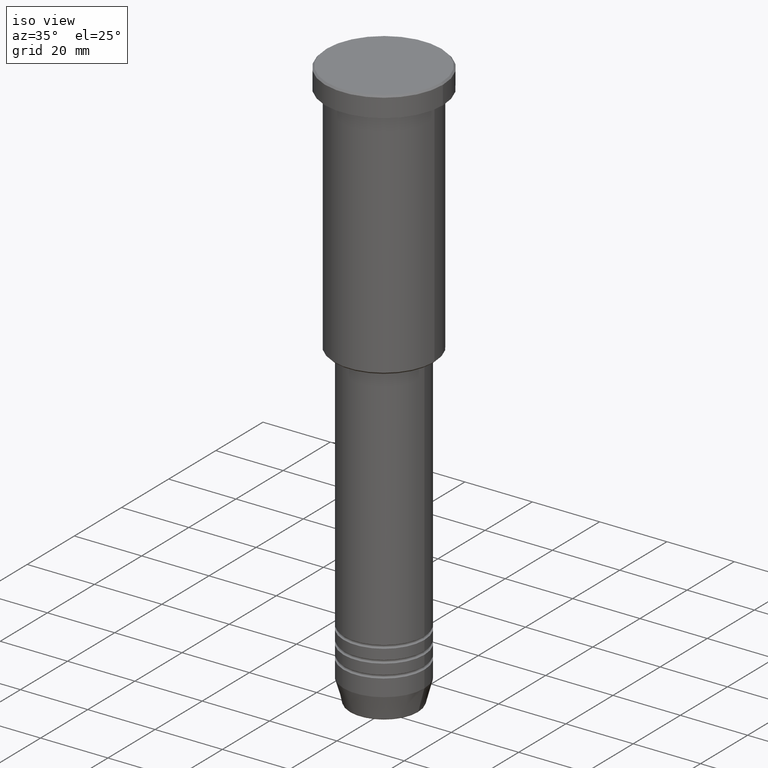
[diagram: clean part render]
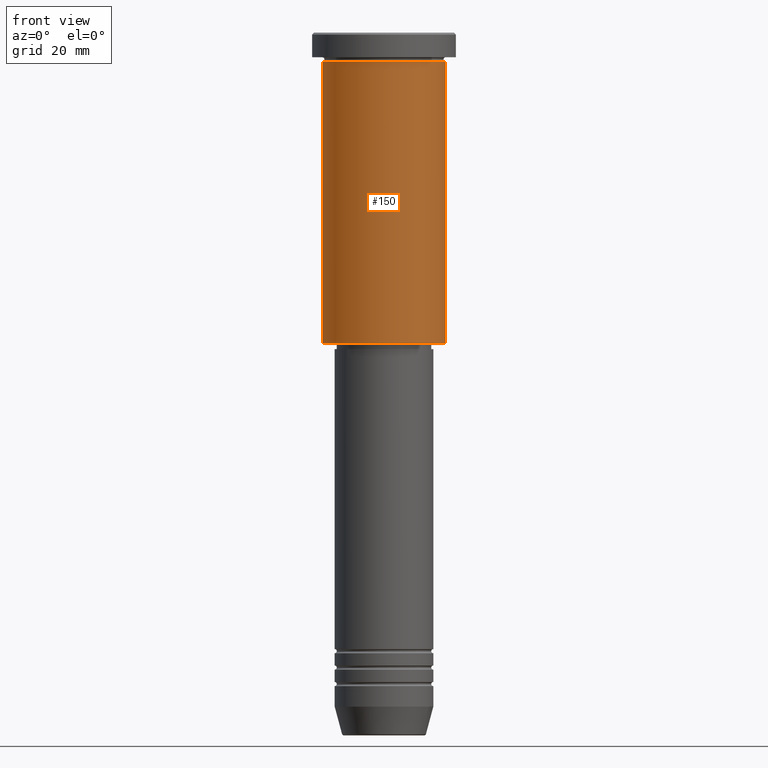
[diagram: tour spotlight — one face highlighted and labeled with its STEP entity id]
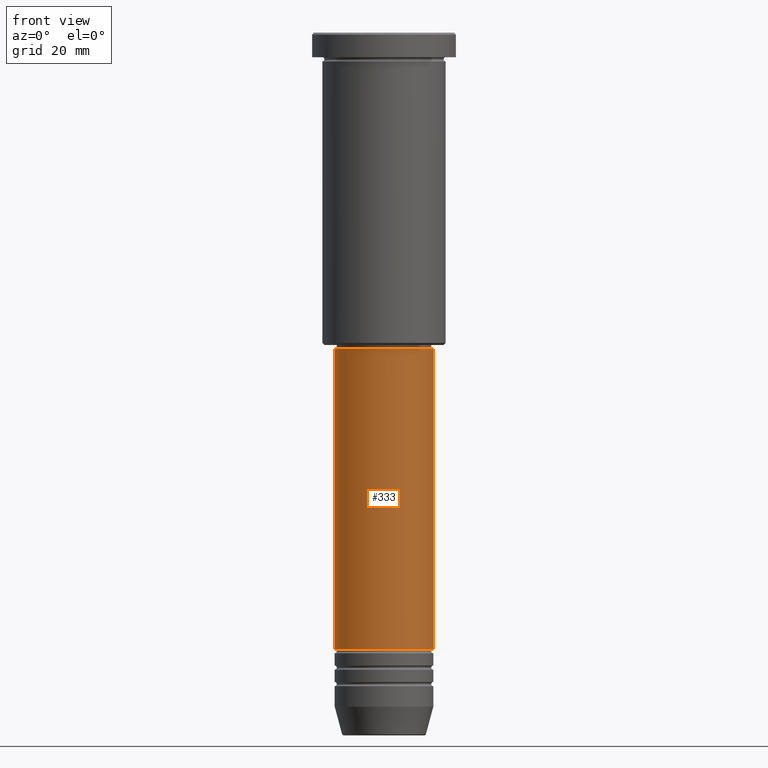
[diagram: tour spotlight — one face highlighted and labeled with its STEP entity id]
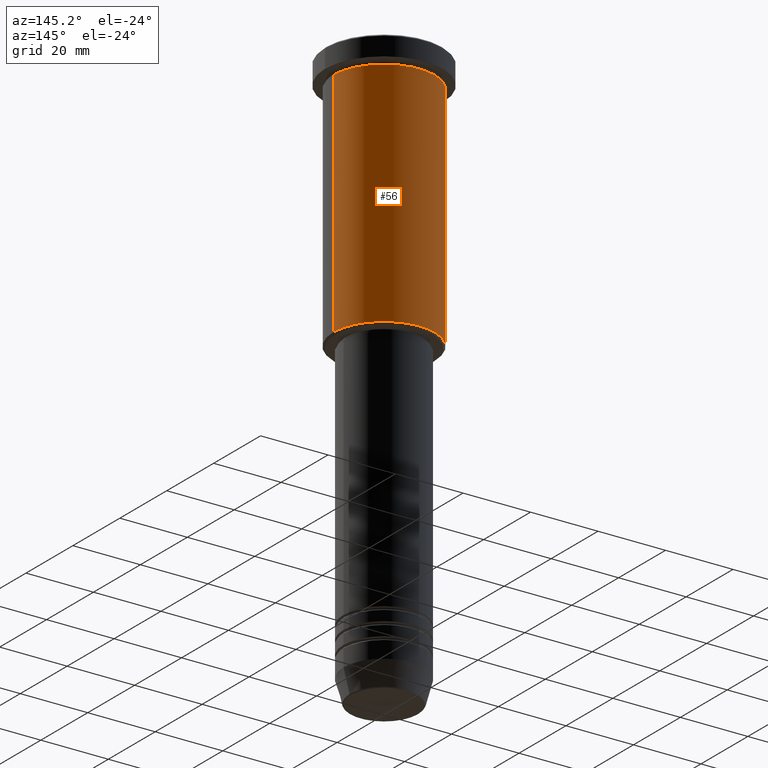
[diagram: tour spotlight — one face highlighted and labeled with its STEP entity id]
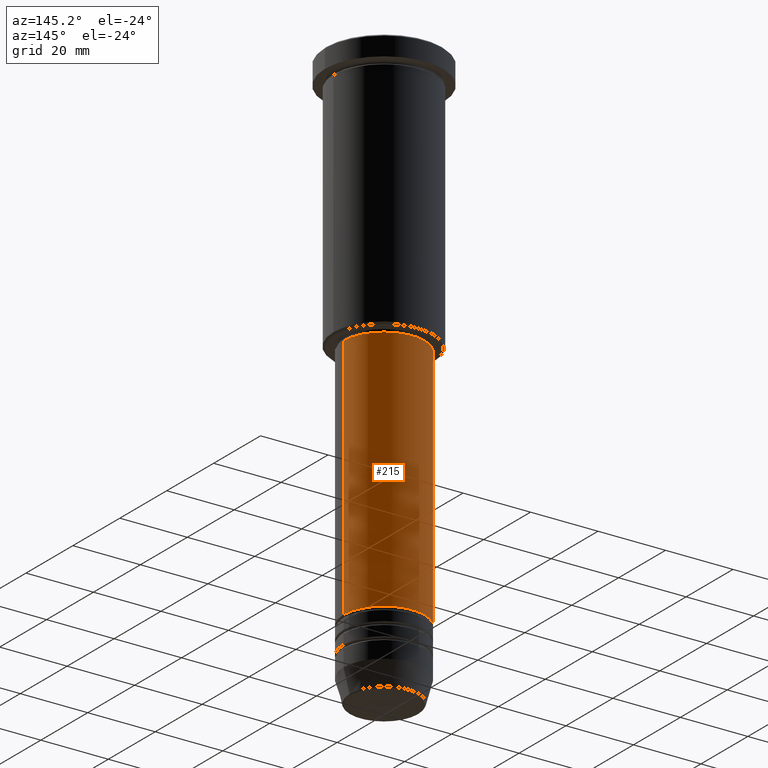
[diagram: tour spotlight — one face highlighted and labeled with its STEP entity id]
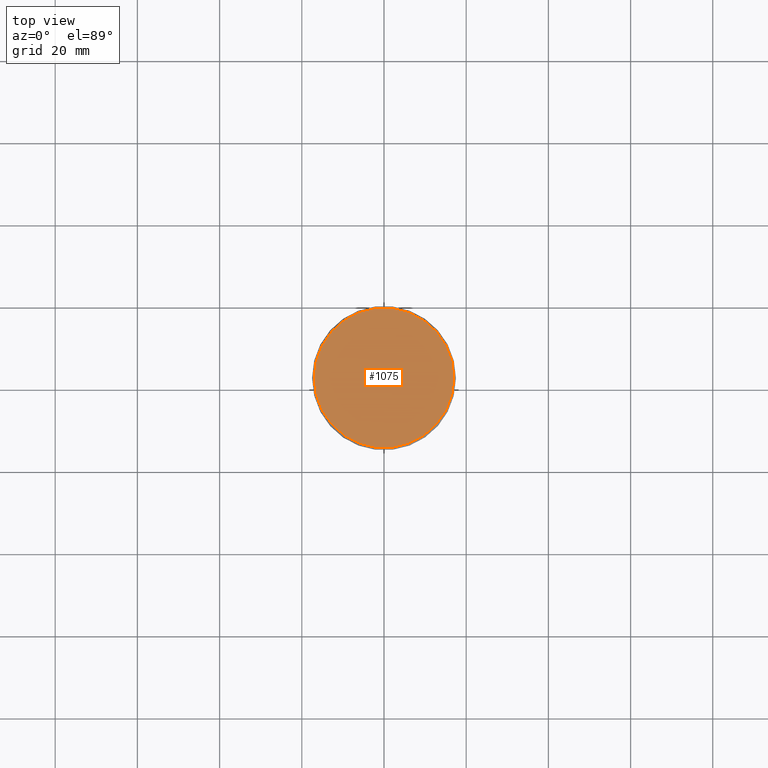
[diagram: tour spotlight — one face highlighted and labeled with its STEP entity id]
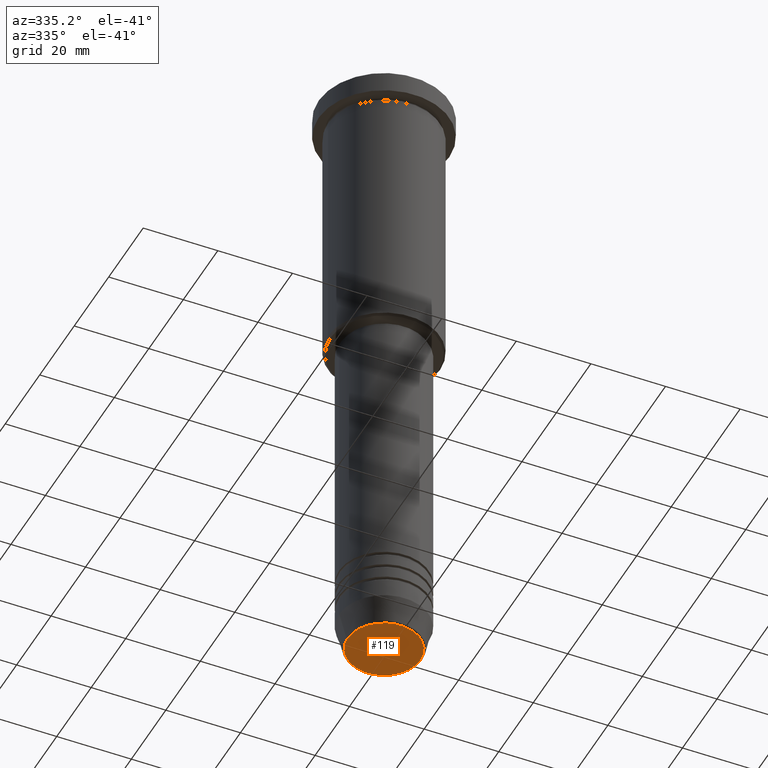
[diagram: tour spotlight — one face highlighted and labeled with its STEP entity id]
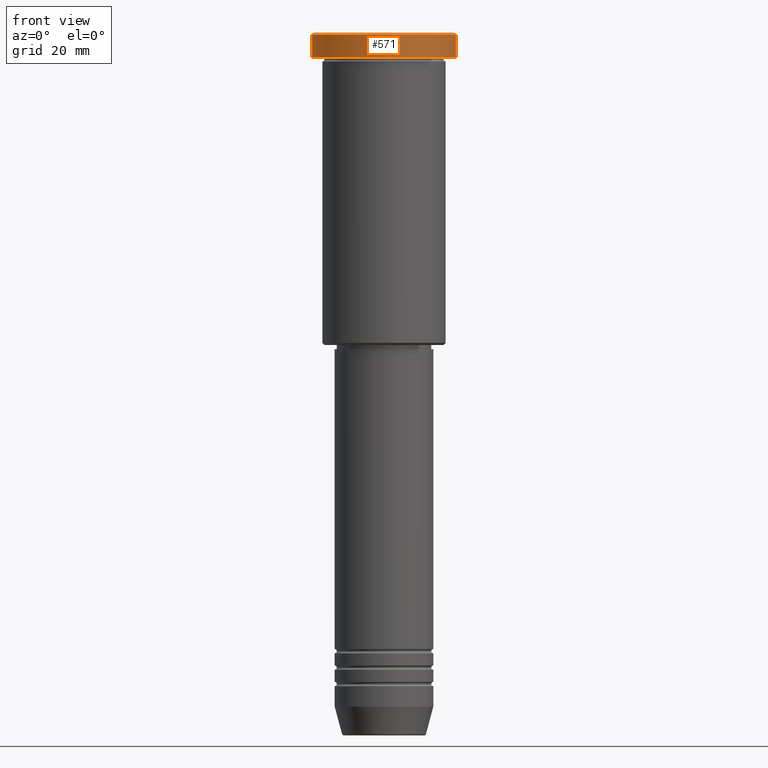
[diagram: tour spotlight — one face highlighted and labeled with its STEP entity id]
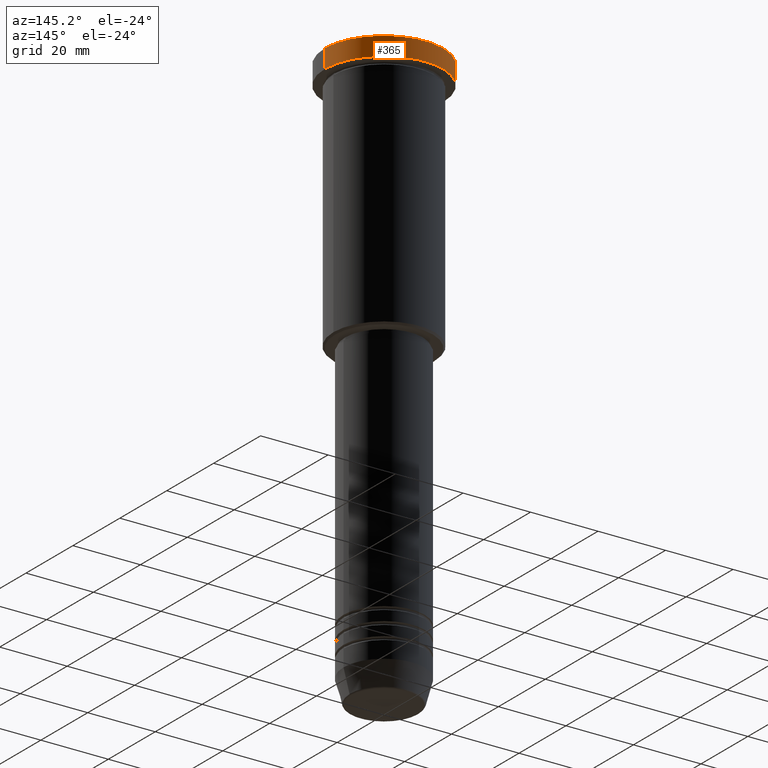
[diagram: tour spotlight — one face highlighted and labeled with its STEP entity id]
A machine part: a face-by-face anatomy tour. The part has 43 B-rep faces; the first image is the clean iso view, then the 8 largest visible faces are spotlighted one at a time (largest first), each with its STEP entity span.

Face 1 — front view, entity #150. In plain terms, the highlighted cylindrical surface (partial cylindrical patch) has radius 15 mm, axis along (-0, -0, 1).
Definition (entity closure, byte-faithful):
#21 = DIRECTION ( 'NONE',  ( -0.000000000000000000, -0.000000000000000000, 1.000000000000000000 ) ) ;
#73 = EDGE_CURVE ( 'NONE', #80, #827, #275, .T. ) ;
#80 = VERTEX_POINT ( 'NONE', #764 ) ;
#81 = DIRECTION ( 'NONE',  ( -0.000000000000000000, -0.000000000000000000, 1.000000000000000000 ) ) ;
#149 = CARTESIAN_POINT ( 'NONE',  ( 0.000000000000000000, 0.000000000000000000, 0.000000000000000000 ) ) ;
#150 = ADVANCED_FACE ( 'NONE', ( #254 ), #1160, .T. ) ;
#254 = FACE_OUTER_BOUND ( 'NONE', #872, .T. ) ;
#275 = CIRCLE ( 'NONE', #605, 15.00000000000000000 ) ;
#312 = DIRECTION ( 'NONE',  ( 1.000000000000000000, 0.000000000000000000, 0.000000000000000000 ) ) ;
#344 = LINE ( 'NONE', #540, #740 ) ;
#364 = ORIENTED_EDGE ( 'NONE', *, *, #463, .T. ) ;
#382 = AXIS2_PLACEMENT_3D ( 'NONE', #831, #21, #312 ) ;
#395 = ORIENTED_EDGE ( 'NONE', *, *, #986, .F. ) ;
#398 = CIRCLE ( 'NONE', #382, 15.00000000000000000 ) ;
#463 = EDGE_CURVE ( 'NONE', #827, #749, #344, .T. ) ;
#482 = CARTESIAN_POINT ( 'NONE',  ( 15.00000000000000000, 0.000000000000000000, -75.49999999999995737 ) ) ;
#484 = CARTESIAN_POINT ( 'NONE',  ( -15.00000000000000000, 1.836970198721029589E-15, -6.999999999999995559 ) ) ;
#502 = DIRECTION ( 'NONE',  ( -0.000000000000000000, -0.000000000000000000, 1.000000000000000000 ) ) ;
#540 = CARTESIAN_POINT ( 'NONE',  ( 15.00000000000000000, 0.000000000000000000, 0.000000000000000000 ) ) ;
#565 = VECTOR ( 'NONE', #1153, 1000.000000000000000 ) ;
#570 = AXIS2_PLACEMENT_3D ( 'NONE', #149, #893, #1167 ) ;
#593 = CARTESIAN_POINT ( 'NONE',  ( 15.00000000000000000, 0.000000000000000000, -6.999999999999995559 ) ) ;
#605 = AXIS2_PLACEMENT_3D ( 'NONE', #853, #502, #857 ) ;
#611 = VERTEX_POINT ( 'NONE', #484 ) ;
#740 = VECTOR ( 'NONE', #81, 1000.000000000000000 ) ;
#749 = VERTEX_POINT ( 'NONE', #593 ) ;
#764 = CARTESIAN_POINT ( 'NONE',  ( -15.00000000000000000, 1.836970198721029589E-15, -75.49999999999995737 ) ) ;
#773 = LINE ( 'NONE', #783, #565 ) ;
#783 = CARTESIAN_POINT ( 'NONE',  ( -15.00000000000000000, 1.836970198721029589E-15, 0.000000000000000000 ) ) ;
#827 = VERTEX_POINT ( 'NONE', #482 ) ;
#831 = CARTESIAN_POINT ( 'NONE',  ( 0.000000000000000000, 0.000000000000000000, -6.999999999999995559 ) ) ;
#837 = EDGE_CURVE ( 'NONE', #611, #749, #398, .T. ) ;
#840 = ORIENTED_EDGE ( 'NONE', *, *, #837, .F. ) ;
#853 = CARTESIAN_POINT ( 'NONE',  ( 0.000000000000000000, 0.000000000000000000, -75.49999999999995737 ) ) ;
#857 = DIRECTION ( 'NONE',  ( -1.000000000000000000, 0.000000000000000000, 0.000000000000000000 ) ) ;
#863 = ORIENTED_EDGE ( 'NONE', *, *, #73, .T. ) ;
#872 = EDGE_LOOP ( 'NONE', ( #395, #863, #364, #840 ) ) ;
#893 = DIRECTION ( 'NONE',  ( -0.000000000000000000, -0.000000000000000000, 1.000000000000000000 ) ) ;
#986 = EDGE_CURVE ( 'NONE', #80, #611, #773, .T. ) ;
#1153 = DIRECTION ( 'NONE',  ( -0.000000000000000000, -0.000000000000000000, 1.000000000000000000 ) ) ;
#1160 = CYLINDRICAL_SURFACE ( 'NONE', #570, 15.00000000000000000 ) ;
#1167 = DIRECTION ( 'NONE',  ( 1.000000000000000000, 0.000000000000000000, 0.000000000000000000 ) ) ;

Face 2 — front view, entity #333. In plain terms, the highlighted cylindrical surface (partial cylindrical patch) has radius 12 mm, axis along (-0, -0, 1).
Definition (entity closure, byte-faithful):
#4 = LINE ( 'NONE', #362, #900 ) ;
#23 = ORIENTED_EDGE ( 'NONE', *, *, #753, .F. ) ;
#82 = DIRECTION ( 'NONE',  ( -0.000000000000000000, -0.000000000000000000, 1.000000000000000000 ) ) ;
#108 = CYLINDRICAL_SURFACE ( 'NONE', #970, 12.00000000000000000 ) ;
#133 = DIRECTION ( 'NONE',  ( -0.000000000000000000, -0.000000000000000000, 1.000000000000000000 ) ) ;
#182 = CARTESIAN_POINT ( 'NONE',  ( 0.000000000000000000, 0.000000000000000000, 0.000000000000000000 ) ) ;
#218 = VERTEX_POINT ( 'NONE', #796 ) ;
#251 = ORIENTED_EDGE ( 'NONE', *, *, #1107, .T. ) ;
#299 = ORIENTED_EDGE ( 'NONE', *, *, #1119, .T. ) ;
#333 = ADVANCED_FACE ( 'NONE', ( #1183 ), #108, .T. ) ;
#345 = DIRECTION ( 'NONE',  ( -0.000000000000000000, -0.000000000000000000, 1.000000000000000000 ) ) ;
#362 = CARTESIAN_POINT ( 'NONE',  ( 12.00000000000000000, 0.000000000000000000, 0.000000000000000000 ) ) ;
#392 = CARTESIAN_POINT ( 'NONE',  ( 12.00000000000000000, 0.000000000000000000, -76.99999999999998579 ) ) ;
#400 = CIRCLE ( 'NONE', #673, 12.00000000000000000 ) ;
#441 = ORIENTED_EDGE ( 'NONE', *, *, #955, .F. ) ;
#442 = CARTESIAN_POINT ( 'NONE',  ( -12.00000000000000000, 1.469576158976823947E-15, -76.99999999999998579 ) ) ;
#509 = CARTESIAN_POINT ( 'NONE',  ( 0.000000000000000000, 0.000000000000000000, -76.99999999999998579 ) ) ;
#557 = EDGE_LOOP ( 'NONE', ( #441, #299, #251, #23 ) ) ;
#559 = DIRECTION ( 'NONE',  ( 1.000000000000000000, 0.000000000000000000, 0.000000000000000000 ) ) ;
#637 = VECTOR ( 'NONE', #133, 1000.000000000000000 ) ;
#673 = AXIS2_PLACEMENT_3D ( 'NONE', #892, #82, #1088 ) ;
#753 = EDGE_CURVE ( 'NONE', #768, #851, #859, .T. ) ;
#768 = VERTEX_POINT ( 'NONE', #442 ) ;
#796 = CARTESIAN_POINT ( 'NONE',  ( 12.00000000000000000, 0.000000000000000000, -149.9999999999998579 ) ) ;
#809 = CARTESIAN_POINT ( 'NONE',  ( -12.00000000000000000, 1.469576158976823947E-15, -149.9999999999998579 ) ) ;
#851 = VERTEX_POINT ( 'NONE', #392 ) ;
#855 = DIRECTION ( 'NONE',  ( 1.000000000000000000, 0.000000000000000000, 0.000000000000000000 ) ) ;
#859 = CIRCLE ( 'NONE', #1149, 12.00000000000000000 ) ;
#888 = VERTEX_POINT ( 'NONE', #809 ) ;
#892 = CARTESIAN_POINT ( 'NONE',  ( 0.000000000000000000, 0.000000000000000000, -149.9999999999998579 ) ) ;
#900 = VECTOR ( 'NONE', #345, 1000.000000000000000 ) ;
#955 = EDGE_CURVE ( 'NONE', #888, #768, #958, .T. ) ;
#958 = LINE ( 'NONE', #1146, #637 ) ;
#970 = AXIS2_PLACEMENT_3D ( 'NONE', #182, #1106, #559 ) ;
#1088 = DIRECTION ( 'NONE',  ( 1.000000000000000000, 0.000000000000000000, 0.000000000000000000 ) ) ;
#1106 = DIRECTION ( 'NONE',  ( -0.000000000000000000, -0.000000000000000000, 1.000000000000000000 ) ) ;
#1107 = EDGE_CURVE ( 'NONE', #218, #851, #4, .T. ) ;
#1119 = EDGE_CURVE ( 'NONE', #888, #218, #400, .T. ) ;
#1129 = DIRECTION ( 'NONE',  ( -0.000000000000000000, -0.000000000000000000, 1.000000000000000000 ) ) ;
#1146 = CARTESIAN_POINT ( 'NONE',  ( -12.00000000000000000, 1.469576158976823947E-15, 0.000000000000000000 ) ) ;
#1149 = AXIS2_PLACEMENT_3D ( 'NONE', #509, #1129, #855 ) ;
#1183 = FACE_OUTER_BOUND ( 'NONE', #557, .T. ) ;

Face 3 — auxiliary view, entity #56. In plain terms, the highlighted cylindrical surface (partial cylindrical patch) has radius 15 mm, axis along (-0, -0, 1).
Definition (entity closure, byte-faithful):
#50 = EDGE_CURVE ( 'NONE', #749, #611, #174, .T. ) ;
#56 = ADVANCED_FACE ( 'NONE', ( #493 ), #943, .T. ) ;
#80 = VERTEX_POINT ( 'NONE', #764 ) ;
#81 = DIRECTION ( 'NONE',  ( -0.000000000000000000, -0.000000000000000000, 1.000000000000000000 ) ) ;
#97 = ORIENTED_EDGE ( 'NONE', *, *, #986, .T. ) ;
#106 = AXIS2_PLACEMENT_3D ( 'NONE', #606, #1073, #890 ) ;
#120 = CARTESIAN_POINT ( 'NONE',  ( 0.000000000000000000, 0.000000000000000000, -6.999999999999995559 ) ) ;
#126 = DIRECTION ( 'NONE',  ( 1.000000000000000000, 0.000000000000000000, 0.000000000000000000 ) ) ;
#174 = CIRCLE ( 'NONE', #734, 15.00000000000000000 ) ;
#344 = LINE ( 'NONE', #540, #740 ) ;
#371 = AXIS2_PLACEMENT_3D ( 'NONE', #669, #676, #949 ) ;
#372 = ORIENTED_EDGE ( 'NONE', *, *, #50, .F. ) ;
#435 = EDGE_LOOP ( 'NONE', ( #697, #97, #372, #985 ) ) ;
#463 = EDGE_CURVE ( 'NONE', #827, #749, #344, .T. ) ;
#482 = CARTESIAN_POINT ( 'NONE',  ( 15.00000000000000000, 0.000000000000000000, -75.49999999999995737 ) ) ;
#484 = CARTESIAN_POINT ( 'NONE',  ( -15.00000000000000000, 1.836970198721029589E-15, -6.999999999999995559 ) ) ;
#493 = FACE_OUTER_BOUND ( 'NONE', #435, .T. ) ;
#527 = EDGE_CURVE ( 'NONE', #827, #80, #994, .T. ) ;
#540 = CARTESIAN_POINT ( 'NONE',  ( 15.00000000000000000, 0.000000000000000000, 0.000000000000000000 ) ) ;
#565 = VECTOR ( 'NONE', #1153, 1000.000000000000000 ) ;
#593 = CARTESIAN_POINT ( 'NONE',  ( 15.00000000000000000, 0.000000000000000000, -6.999999999999995559 ) ) ;
#606 = CARTESIAN_POINT ( 'NONE',  ( 0.000000000000000000, 0.000000000000000000, -75.49999999999995737 ) ) ;
#611 = VERTEX_POINT ( 'NONE', #484 ) ;
#669 = CARTESIAN_POINT ( 'NONE',  ( 0.000000000000000000, 0.000000000000000000, 0.000000000000000000 ) ) ;
#676 = DIRECTION ( 'NONE',  ( -0.000000000000000000, -0.000000000000000000, 1.000000000000000000 ) ) ;
#697 = ORIENTED_EDGE ( 'NONE', *, *, #527, .T. ) ;
#734 = AXIS2_PLACEMENT_3D ( 'NONE', #120, #935, #126 ) ;
#740 = VECTOR ( 'NONE', #81, 1000.000000000000000 ) ;
#749 = VERTEX_POINT ( 'NONE', #593 ) ;
#764 = CARTESIAN_POINT ( 'NONE',  ( -15.00000000000000000, 1.836970198721029589E-15, -75.49999999999995737 ) ) ;
#773 = LINE ( 'NONE', #783, #565 ) ;
#783 = CARTESIAN_POINT ( 'NONE',  ( -15.00000000000000000, 1.836970198721029589E-15, 0.000000000000000000 ) ) ;
#827 = VERTEX_POINT ( 'NONE', #482 ) ;
#890 = DIRECTION ( 'NONE',  ( -1.000000000000000000, 0.000000000000000000, 0.000000000000000000 ) ) ;
#935 = DIRECTION ( 'NONE',  ( -0.000000000000000000, -0.000000000000000000, 1.000000000000000000 ) ) ;
#943 = CYLINDRICAL_SURFACE ( 'NONE', #371, 15.00000000000000000 ) ;
#949 = DIRECTION ( 'NONE',  ( 1.000000000000000000, 0.000000000000000000, 0.000000000000000000 ) ) ;
#985 = ORIENTED_EDGE ( 'NONE', *, *, #463, .F. ) ;
#986 = EDGE_CURVE ( 'NONE', #80, #611, #773, .T. ) ;
#994 = CIRCLE ( 'NONE', #106, 15.00000000000000000 ) ;
#1073 = DIRECTION ( 'NONE',  ( -0.000000000000000000, -0.000000000000000000, 1.000000000000000000 ) ) ;
#1153 = DIRECTION ( 'NONE',  ( -0.000000000000000000, -0.000000000000000000, 1.000000000000000000 ) ) ;

Face 4 — auxiliary view, entity #215. In plain terms, the highlighted cylindrical surface (partial cylindrical patch) has radius 12 mm, axis along (-0, -0, 1).
Definition (entity closure, byte-faithful):
#4 = LINE ( 'NONE', #362, #900 ) ;
#36 = CARTESIAN_POINT ( 'NONE',  ( 0.000000000000000000, 0.000000000000000000, -76.99999999999998579 ) ) ;
#133 = DIRECTION ( 'NONE',  ( -0.000000000000000000, -0.000000000000000000, 1.000000000000000000 ) ) ;
#152 = EDGE_LOOP ( 'NONE', ( #225, #739, #373, #1155 ) ) ;
#157 = CIRCLE ( 'NONE', #561, 12.00000000000000000 ) ;
#165 = CYLINDRICAL_SURFACE ( 'NONE', #1113, 12.00000000000000000 ) ;
#215 = ADVANCED_FACE ( 'NONE', ( #453 ), #165, .T. ) ;
#218 = VERTEX_POINT ( 'NONE', #796 ) ;
#225 = ORIENTED_EDGE ( 'NONE', *, *, #258, .T. ) ;
#258 = EDGE_CURVE ( 'NONE', #218, #888, #157, .T. ) ;
#345 = DIRECTION ( 'NONE',  ( -0.000000000000000000, -0.000000000000000000, 1.000000000000000000 ) ) ;
#362 = CARTESIAN_POINT ( 'NONE',  ( 12.00000000000000000, 0.000000000000000000, 0.000000000000000000 ) ) ;
#363 = DIRECTION ( 'NONE',  ( -0.000000000000000000, -0.000000000000000000, 1.000000000000000000 ) ) ;
#373 = ORIENTED_EDGE ( 'NONE', *, *, #968, .F. ) ;
#392 = CARTESIAN_POINT ( 'NONE',  ( 12.00000000000000000, 0.000000000000000000, -76.99999999999998579 ) ) ;
#432 = DIRECTION ( 'NONE',  ( 1.000000000000000000, 0.000000000000000000, 0.000000000000000000 ) ) ;
#442 = CARTESIAN_POINT ( 'NONE',  ( -12.00000000000000000, 1.469576158976823947E-15, -76.99999999999998579 ) ) ;
#448 = CARTESIAN_POINT ( 'NONE',  ( 0.000000000000000000, 0.000000000000000000, 0.000000000000000000 ) ) ;
#453 = FACE_OUTER_BOUND ( 'NONE', #152, .T. ) ;
#525 = CIRCLE ( 'NONE', #877, 12.00000000000000000 ) ;
#561 = AXIS2_PLACEMENT_3D ( 'NONE', #1095, #640, #1004 ) ;
#637 = VECTOR ( 'NONE', #133, 1000.000000000000000 ) ;
#640 = DIRECTION ( 'NONE',  ( -0.000000000000000000, -0.000000000000000000, 1.000000000000000000 ) ) ;
#739 = ORIENTED_EDGE ( 'NONE', *, *, #955, .T. ) ;
#767 = DIRECTION ( 'NONE',  ( -0.000000000000000000, -0.000000000000000000, 1.000000000000000000 ) ) ;
#768 = VERTEX_POINT ( 'NONE', #442 ) ;
#796 = CARTESIAN_POINT ( 'NONE',  ( 12.00000000000000000, 0.000000000000000000, -149.9999999999998579 ) ) ;
#809 = CARTESIAN_POINT ( 'NONE',  ( -12.00000000000000000, 1.469576158976823947E-15, -149.9999999999998579 ) ) ;
#851 = VERTEX_POINT ( 'NONE', #392 ) ;
#877 = AXIS2_PLACEMENT_3D ( 'NONE', #36, #767, #432 ) ;
#885 = DIRECTION ( 'NONE',  ( 1.000000000000000000, 0.000000000000000000, 0.000000000000000000 ) ) ;
#888 = VERTEX_POINT ( 'NONE', #809 ) ;
#900 = VECTOR ( 'NONE', #345, 1000.000000000000000 ) ;
#955 = EDGE_CURVE ( 'NONE', #888, #768, #958, .T. ) ;
#958 = LINE ( 'NONE', #1146, #637 ) ;
#968 = EDGE_CURVE ( 'NONE', #851, #768, #525, .T. ) ;
#1004 = DIRECTION ( 'NONE',  ( 1.000000000000000000, 0.000000000000000000, 0.000000000000000000 ) ) ;
#1095 = CARTESIAN_POINT ( 'NONE',  ( 0.000000000000000000, 0.000000000000000000, -149.9999999999998579 ) ) ;
#1107 = EDGE_CURVE ( 'NONE', #218, #851, #4, .T. ) ;
#1113 = AXIS2_PLACEMENT_3D ( 'NONE', #448, #363, #885 ) ;
#1146 = CARTESIAN_POINT ( 'NONE',  ( -12.00000000000000000, 1.469576158976823947E-15, 0.000000000000000000 ) ) ;
#1155 = ORIENTED_EDGE ( 'NONE', *, *, #1107, .F. ) ;

Face 5 — top view, entity #1075. In plain terms, the highlighted planar face has unit normal (0, -0, 1).
Definition (entity closure, byte-faithful):
#7 = DIRECTION ( 'NONE',  ( 1.000000000000000000, 0.000000000000000000, 0.000000000000000000 ) ) ;
#10 = AXIS2_PLACEMENT_3D ( 'NONE', #186, #210, #7 ) ;
#18 = ORIENTED_EDGE ( 'NONE', *, *, #594, .T. ) ;
#55 = ORIENTED_EDGE ( 'NONE', *, *, #1125, .T. ) ;
#68 = AXIS2_PLACEMENT_3D ( 'NONE', #789, #1098, #621 ) ;
#164 = FACE_OUTER_BOUND ( 'NONE', #902, .T. ) ;
#186 = CARTESIAN_POINT ( 'NONE',  ( 0.000000000000000000, 0.000000000000000000, 0.000000000000000000 ) ) ;
#210 = DIRECTION ( 'NONE',  ( -0.000000000000000000, -0.000000000000000000, 1.000000000000000000 ) ) ;
#277 = VERTEX_POINT ( 'NONE', #471 ) ;
#285 = PLANE ( 'NONE',  #68 ) ;
#323 = CIRCLE ( 'NONE', #419, 17.00000000000001421 ) ;
#384 = DIRECTION ( 'NONE',  ( 1.000000000000000000, 0.000000000000000000, 0.000000000000000000 ) ) ;
#399 = DIRECTION ( 'NONE',  ( -0.000000000000000000, -0.000000000000000000, 1.000000000000000000 ) ) ;
#419 = AXIS2_PLACEMENT_3D ( 'NONE', #1182, #399, #384 ) ;
#429 = VERTEX_POINT ( 'NONE', #811 ) ;
#471 = CARTESIAN_POINT ( 'NONE',  ( 17.00000000000001421, 2.112515728529185250E-15, 0.000000000000000000 ) ) ;
#594 = EDGE_CURVE ( 'NONE', #429, #277, #938, .T. ) ;
#621 = DIRECTION ( 'NONE',  ( 1.000000000000000000, 0.000000000000000000, 0.000000000000000000 ) ) ;
#789 = CARTESIAN_POINT ( 'NONE',  ( 0.000000000000000000, 0.000000000000000000, 0.000000000000000000 ) ) ;
#811 = CARTESIAN_POINT ( 'NONE',  ( -17.00000000000001421, 0.000000000000000000, 0.000000000000000000 ) ) ;
#902 = EDGE_LOOP ( 'NONE', ( #18, #55 ) ) ;
#938 = CIRCLE ( 'NONE', #10, 17.00000000000001421 ) ;
#1075 = ADVANCED_FACE ( 'NONE', ( #164 ), #285, .T. ) ;
#1098 = DIRECTION ( 'NONE',  ( 0.000000000000000000, -0.000000000000000000, 1.000000000000000000 ) ) ;
#1125 = EDGE_CURVE ( 'NONE', #277, #429, #323, .T. ) ;
#1182 = CARTESIAN_POINT ( 'NONE',  ( 0.000000000000000000, 0.000000000000000000, 0.000000000000000000 ) ) ;

Face 6 — auxiliary view, entity #119. In plain terms, the highlighted planar face has unit normal (0, -0, 1).
Definition (entity closure, byte-faithful):
#13 = VERTEX_POINT ( 'NONE', #32 ) ;
#32 = CARTESIAN_POINT ( 'NONE',  ( 9.740692158992658278, 0.000000000000000000, -170.9999999999999716 ) ) ;
#59 = FACE_OUTER_BOUND ( 'NONE', #838, .T. ) ;
#119 = ADVANCED_FACE ( 'NONE', ( #59 ), #143, .F. ) ;
#135 = DIRECTION ( 'NONE',  ( 1.000000000000000000, 0.000000000000000000, 0.000000000000000000 ) ) ;
#143 = PLANE ( 'NONE',  #291 ) ;
#222 = CIRCLE ( 'NONE', #490, 9.740692158992658278 ) ;
#291 = AXIS2_PLACEMENT_3D ( 'NONE', #774, #956, #537 ) ;
#317 = CARTESIAN_POINT ( 'NONE',  ( 0.000000000000000000, 0.000000000000000000, -170.9999999999999716 ) ) ;
#337 = ORIENTED_EDGE ( 'NONE', *, *, #690, .T. ) ;
#367 = ORIENTED_EDGE ( 'NONE', *, *, #477, .T. ) ;
#443 = VERTEX_POINT ( 'NONE', #444 ) ;
#444 = CARTESIAN_POINT ( 'NONE',  ( -9.740692158992658278, 1.222463696683474999E-15, -170.9999999999999716 ) ) ;
#477 = EDGE_CURVE ( 'NONE', #443, #13, #721, .T. ) ;
#490 = AXIS2_PLACEMENT_3D ( 'NONE', #317, #670, #135 ) ;
#537 = DIRECTION ( 'NONE',  ( 1.000000000000000000, 0.000000000000000000, 0.000000000000000000 ) ) ;
#670 = DIRECTION ( 'NONE',  ( 0.000000000000000000, 0.000000000000000000, -1.000000000000000000 ) ) ;
#690 = EDGE_CURVE ( 'NONE', #13, #443, #222, .T. ) ;
#721 = CIRCLE ( 'NONE', #874, 9.740692158992658278 ) ;
#774 = CARTESIAN_POINT ( 'NONE',  ( 0.000000000000000000, 0.000000000000000000, -170.9999999999999716 ) ) ;
#838 = EDGE_LOOP ( 'NONE', ( #337, #367 ) ) ;
#874 = AXIS2_PLACEMENT_3D ( 'NONE', #1092, #1181, #1065 ) ;
#956 = DIRECTION ( 'NONE',  ( 0.000000000000000000, -0.000000000000000000, 1.000000000000000000 ) ) ;
#1065 = DIRECTION ( 'NONE',  ( 1.000000000000000000, 0.000000000000000000, 0.000000000000000000 ) ) ;
#1092 = CARTESIAN_POINT ( 'NONE',  ( 0.000000000000000000, 0.000000000000000000, -170.9999999999999716 ) ) ;
#1181 = DIRECTION ( 'NONE',  ( 0.000000000000000000, 0.000000000000000000, -1.000000000000000000 ) ) ;

Face 7 — front view, entity #571. In plain terms, the highlighted cylindrical surface (partial cylindrical patch) has radius 17.5 mm, axis along (-0, -0, 1).
Definition (entity closure, byte-faithful):
#20 = DIRECTION ( 'NONE',  ( 1.000000000000000000, 0.000000000000000000, 0.000000000000000000 ) ) ;
#115 = ORIENTED_EDGE ( 'NONE', *, *, #288, .T. ) ;
#153 = DIRECTION ( 'NONE',  ( -0.000000000000000000, -0.000000000000000000, 1.000000000000000000 ) ) ;
#214 = DIRECTION ( 'NONE',  ( -0.000000000000000000, -0.000000000000000000, 1.000000000000000000 ) ) ;
#257 = AXIS2_PLACEMENT_3D ( 'NONE', #391, #922, #1104 ) ;
#278 = CARTESIAN_POINT ( 'NONE',  ( -17.50000000000000000, 2.143131898507868248E-15, 0.000000000000000000 ) ) ;
#288 = EDGE_CURVE ( 'NONE', #483, #731, #1089, .T. ) ;
#290 = CARTESIAN_POINT ( 'NONE',  ( -17.50000000000000000, 2.143131898507868248E-15, -0.4999999999999727995 ) ) ;
#297 = CARTESIAN_POINT ( 'NONE',  ( 0.000000000000000000, 0.000000000000000000, -0.4999999999999727995 ) ) ;
#315 = DIRECTION ( 'NONE',  ( 0.000000000000000000, 0.000000000000000000, -1.000000000000000000 ) ) ;
#374 = EDGE_CURVE ( 'NONE', #1116, #603, #451, .T. ) ;
#386 = CARTESIAN_POINT ( 'NONE',  ( 17.50000000000000000, 0.000000000000000000, 0.000000000000000000 ) ) ;
#388 = DIRECTION ( 'NONE',  ( -0.000000000000000000, -0.000000000000000000, 1.000000000000000000 ) ) ;
#391 = CARTESIAN_POINT ( 'NONE',  ( 0.000000000000000000, 0.000000000000000000, 0.000000000000000000 ) ) ;
#397 = VECTOR ( 'NONE', #153, 1000.000000000000000 ) ;
#421 = CARTESIAN_POINT ( 'NONE',  ( 17.50000000000000000, 0.000000000000000000, -0.4999999999999727995 ) ) ;
#451 = LINE ( 'NONE', #278, #397 ) ;
#483 = VERTEX_POINT ( 'NONE', #799 ) ;
#539 = ORIENTED_EDGE ( 'NONE', *, *, #1144, .T. ) ;
#568 = EDGE_LOOP ( 'NONE', ( #887, #825, #115, #539 ) ) ;
#571 = ADVANCED_FACE ( 'NONE', ( #821 ), #915, .T. ) ;
#588 = DIRECTION ( 'NONE',  ( 1.000000000000000000, 0.000000000000000000, 0.000000000000000000 ) ) ;
#603 = VERTEX_POINT ( 'NONE', #290 ) ;
#663 = EDGE_CURVE ( 'NONE', #1116, #483, #998, .T. ) ;
#731 = VERTEX_POINT ( 'NONE', #421 ) ;
#751 = CARTESIAN_POINT ( 'NONE',  ( 0.000000000000000000, 0.000000000000000000, -5.999999999999995559 ) ) ;
#761 = AXIS2_PLACEMENT_3D ( 'NONE', #297, #315, #20 ) ;
#799 = CARTESIAN_POINT ( 'NONE',  ( 17.50000000000000000, 0.000000000000000000, -5.999999999999995559 ) ) ;
#821 = FACE_OUTER_BOUND ( 'NONE', #568, .T. ) ;
#824 = VECTOR ( 'NONE', #388, 1000.000000000000000 ) ;
#825 = ORIENTED_EDGE ( 'NONE', *, *, #663, .T. ) ;
#887 = ORIENTED_EDGE ( 'NONE', *, *, #374, .F. ) ;
#915 = CYLINDRICAL_SURFACE ( 'NONE', #257, 17.50000000000000000 ) ;
#922 = DIRECTION ( 'NONE',  ( -0.000000000000000000, -0.000000000000000000, 1.000000000000000000 ) ) ;
#971 = AXIS2_PLACEMENT_3D ( 'NONE', #751, #214, #588 ) ;
#972 = CARTESIAN_POINT ( 'NONE',  ( -17.50000000000000000, 2.143131898507868248E-15, -5.999999999999995559 ) ) ;
#973 = CIRCLE ( 'NONE', #761, 17.50000000000000000 ) ;
#998 = CIRCLE ( 'NONE', #971, 17.50000000000000000 ) ;
#1089 = LINE ( 'NONE', #386, #824 ) ;
#1104 = DIRECTION ( 'NONE',  ( 1.000000000000000000, 0.000000000000000000, 0.000000000000000000 ) ) ;
#1116 = VERTEX_POINT ( 'NONE', #972 ) ;
#1144 = EDGE_CURVE ( 'NONE', #731, #603, #973, .T. ) ;

Face 8 — auxiliary view, entity #365. In plain terms, the highlighted cylindrical surface (partial cylindrical patch) has radius 17.5 mm, axis along (-0, -0, 1).
Definition (entity closure, byte-faithful):
#90 = DIRECTION ( 'NONE',  ( 1.000000000000000000, 0.000000000000000000, 0.000000000000000000 ) ) ;
#146 = DIRECTION ( 'NONE',  ( 1.000000000000000000, 0.000000000000000000, 0.000000000000000000 ) ) ;
#153 = DIRECTION ( 'NONE',  ( -0.000000000000000000, -0.000000000000000000, 1.000000000000000000 ) ) ;
#181 = CARTESIAN_POINT ( 'NONE',  ( 0.000000000000000000, 0.000000000000000000, -0.4999999999999727995 ) ) ;
#185 = AXIS2_PLACEMENT_3D ( 'NONE', #881, #534, #146 ) ;
#278 = CARTESIAN_POINT ( 'NONE',  ( -17.50000000000000000, 2.143131898507868248E-15, 0.000000000000000000 ) ) ;
#288 = EDGE_CURVE ( 'NONE', #483, #731, #1089, .T. ) ;
#290 = CARTESIAN_POINT ( 'NONE',  ( -17.50000000000000000, 2.143131898507868248E-15, -0.4999999999999727995 ) ) ;
#301 = CIRCLE ( 'NONE', #185, 17.50000000000000000 ) ;
#332 = ORIENTED_EDGE ( 'NONE', *, *, #288, .F. ) ;
#365 = ADVANCED_FACE ( 'NONE', ( #996 ), #868, .T. ) ;
#374 = EDGE_CURVE ( 'NONE', #1116, #603, #451, .T. ) ;
#386 = CARTESIAN_POINT ( 'NONE',  ( 17.50000000000000000, 0.000000000000000000, 0.000000000000000000 ) ) ;
#388 = DIRECTION ( 'NONE',  ( -0.000000000000000000, -0.000000000000000000, 1.000000000000000000 ) ) ;
#397 = VECTOR ( 'NONE', #153, 1000.000000000000000 ) ;
#421 = CARTESIAN_POINT ( 'NONE',  ( 17.50000000000000000, 0.000000000000000000, -0.4999999999999727995 ) ) ;
#451 = LINE ( 'NONE', #278, #397 ) ;
#483 = VERTEX_POINT ( 'NONE', #799 ) ;
#504 = EDGE_CURVE ( 'NONE', #483, #1116, #301, .T. ) ;
#515 = DIRECTION ( 'NONE',  ( -0.000000000000000000, -0.000000000000000000, 1.000000000000000000 ) ) ;
#534 = DIRECTION ( 'NONE',  ( -0.000000000000000000, -0.000000000000000000, 1.000000000000000000 ) ) ;
#603 = VERTEX_POINT ( 'NONE', #290 ) ;
#671 = AXIS2_PLACEMENT_3D ( 'NONE', #1150, #515, #90 ) ;
#724 = ORIENTED_EDGE ( 'NONE', *, *, #504, .T. ) ;
#731 = VERTEX_POINT ( 'NONE', #421 ) ;
#799 = CARTESIAN_POINT ( 'NONE',  ( 17.50000000000000000, 0.000000000000000000, -5.999999999999995559 ) ) ;
#812 = DIRECTION ( 'NONE',  ( 1.000000000000000000, 0.000000000000000000, 0.000000000000000000 ) ) ;
#824 = VECTOR ( 'NONE', #388, 1000.000000000000000 ) ;
#828 = AXIS2_PLACEMENT_3D ( 'NONE', #181, #897, #812 ) ;
#832 = ORIENTED_EDGE ( 'NONE', *, *, #1123, .T. ) ;
#868 = CYLINDRICAL_SURFACE ( 'NONE', #671, 17.50000000000000000 ) ;
#881 = CARTESIAN_POINT ( 'NONE',  ( 0.000000000000000000, 0.000000000000000000, -5.999999999999995559 ) ) ;
#897 = DIRECTION ( 'NONE',  ( 0.000000000000000000, 0.000000000000000000, -1.000000000000000000 ) ) ;
#950 = ORIENTED_EDGE ( 'NONE', *, *, #374, .T. ) ;
#972 = CARTESIAN_POINT ( 'NONE',  ( -17.50000000000000000, 2.143131898507868248E-15, -5.999999999999995559 ) ) ;
#996 = FACE_OUTER_BOUND ( 'NONE', #1006, .T. ) ;
#1006 = EDGE_LOOP ( 'NONE', ( #724, #950, #832, #332 ) ) ;
#1060 = CIRCLE ( 'NONE', #828, 17.50000000000000000 ) ;
#1089 = LINE ( 'NONE', #386, #824 ) ;
#1116 = VERTEX_POINT ( 'NONE', #972 ) ;
#1123 = EDGE_CURVE ( 'NONE', #603, #731, #1060, .T. ) ;
#1150 = CARTESIAN_POINT ( 'NONE',  ( 0.000000000000000000, 0.000000000000000000, 0.000000000000000000 ) ) ;